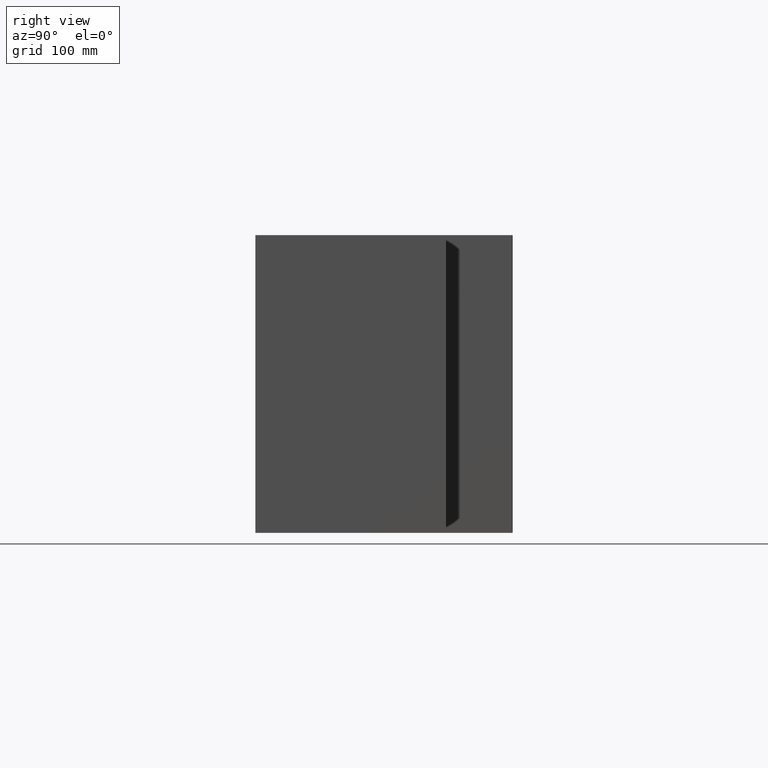
[diagram: clean part render]
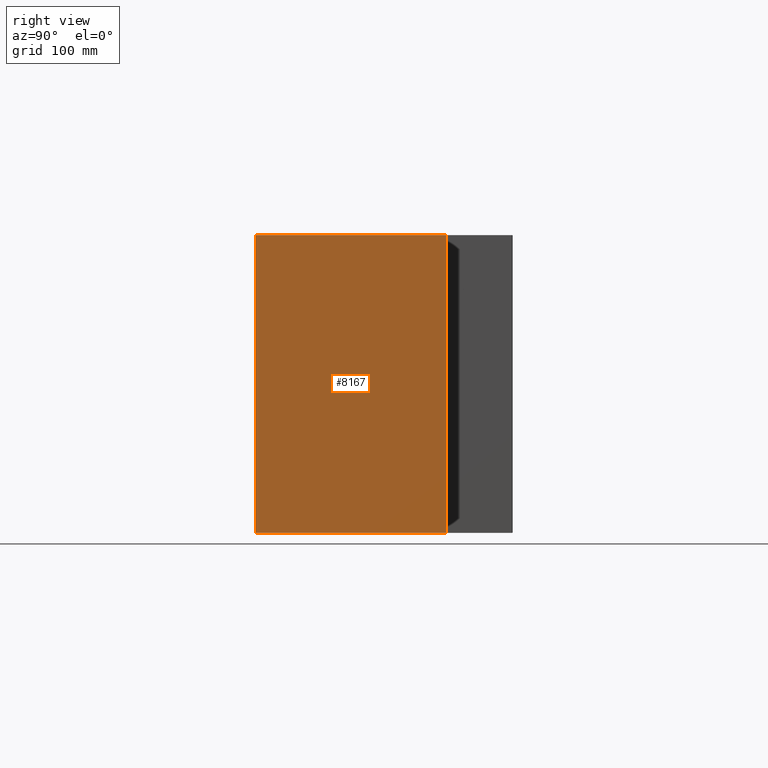
[diagram: same view with one face highlighted and labeled with its STEP entity id]
A machine part, right view. The second image highlights one B-rep face of the part: STEP entity #8167.
In plain terms, the highlighted planar face has unit normal (1, -0, 0).
Its self-contained STEP definition (entity closure, byte-faithful):
#42 = CARTESIAN_POINT ( 'NONE',  ( 973.0000000000000000, 300.0000000000000568, 0.0000000000000000000 ) ) ;
#573 = EDGE_CURVE ( 'NONE', #13966, #11889, #10122, .T. ) ;
#630 = VERTEX_POINT ( 'NONE', #10287 ) ;
#772 = CARTESIAN_POINT ( 'NONE',  ( 973.0000000000000000, -1.000000000000028644, -771.1062935243962784 ) ) ;
#992 = CARTESIAN_POINT ( 'NONE',  ( 973.0000000000000000, 300.0000000000000568, -469.9999999999999432 ) ) ;
#2273 = DIRECTION ( 'NONE',  ( 0.0000000000000000000, 1.000000000000000000, -7.504158452598543117E-32 ) ) ;
#2387 = CARTESIAN_POINT ( 'NONE',  ( 973.0000000000000000, 300.0000000000000568, -469.9999999999999432 ) ) ;
#2869 = DIRECTION ( 'NONE',  ( 1.000000000000000000, -5.780993388514448887E-65, 3.851859888774471706E-34 ) ) ;
#3156 = VECTOR ( 'NONE', #4049, 1000.000000000000000 ) ;
#3470 = ORIENTED_EDGE ( 'NONE', *, *, #9803, .F. ) ;
#4049 = DIRECTION ( 'NONE',  ( -3.851859888774472561E-34, -7.504167856553354074E-32, 1.000000000000000000 ) ) ;
#4074 = FACE_OUTER_BOUND ( 'NONE', #8546, .T. ) ;
#5654 = DIRECTION ( 'NONE',  ( -3.851859888774472561E-34, -7.504167856553354074E-32, 1.000000000000000000 ) ) ;
#5857 = ORIENTED_EDGE ( 'NONE', *, *, #573, .T. ) ;
#7258 = DIRECTION ( 'NONE',  ( 0.0000000000000000000, -1.000000000000000000, 7.504158452598543117E-32 ) ) ;
#7476 = ORIENTED_EDGE ( 'NONE', *, *, #9157, .F. ) ;
#7730 = DIRECTION ( 'NONE',  ( 3.851859888774471706E-34, 7.504158452598545307E-32, -1.000000000000000000 ) ) ;
#8115 = AXIS2_PLACEMENT_3D ( 'NONE', #13815, #2869, #7730 ) ;
#8167 = ADVANCED_FACE ( 'NONE', ( #4074 ), #8948, .T. ) ;
#8344 = LINE ( 'NONE', #13214, #11713 ) ;
#8546 = EDGE_LOOP ( 'NONE', ( #7476, #5857, #9480, #3470 ) ) ;
#8838 = VECTOR ( 'NONE', #7258, 1000.000000000000000 ) ;
#8948 = PLANE ( 'NONE',  #8115 ) ;
#9044 = CARTESIAN_POINT ( 'NONE',  ( 973.0000000000000000, -1.000000000000028644, -469.9999999999999432 ) ) ;
#9157 = EDGE_CURVE ( 'NONE', #13966, #12420, #13331, .T. ) ;
#9480 = ORIENTED_EDGE ( 'NONE', *, *, #15066, .F. ) ;
#9803 = EDGE_CURVE ( 'NONE', #12420, #630, #11710, .T. ) ;
#10122 = LINE ( 'NONE', #14983, #3156 ) ;
#10287 = CARTESIAN_POINT ( 'NONE',  ( 973.0000000000000000, -1.000000000000028644, 0.0000000000000000000 ) ) ;
#11710 = LINE ( 'NONE', #772, #15434 ) ;
#11713 = VECTOR ( 'NONE', #2273, 1000.000000000000000 ) ;
#11889 = VERTEX_POINT ( 'NONE', #42 ) ;
#12420 = VERTEX_POINT ( 'NONE', #9044 ) ;
#13214 = CARTESIAN_POINT ( 'NONE',  ( 973.0000000000000000, 300.0000000000000568, 0.0000000000000000000 ) ) ;
#13331 = LINE ( 'NONE', #2387, #8838 ) ;
#13815 = CARTESIAN_POINT ( 'NONE',  ( 973.0000000000000000, 300.0000000000000568, -771.1062935243962784 ) ) ;
#13966 = VERTEX_POINT ( 'NONE', #992 ) ;
#14983 = CARTESIAN_POINT ( 'NONE',  ( 973.0000000000000000, 300.0000000000000568, -771.1062935243962784 ) ) ;
#15066 = EDGE_CURVE ( 'NONE', #630, #11889, #8344, .T. ) ;
#15434 = VECTOR ( 'NONE', #5654, 1000.000000000000000 ) ;